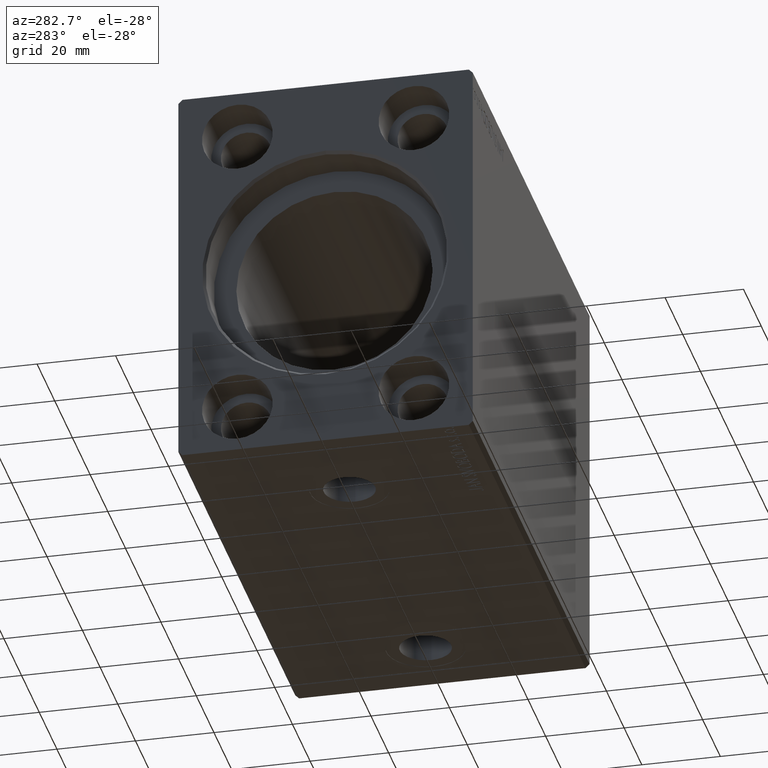
[diagram: clean part render]
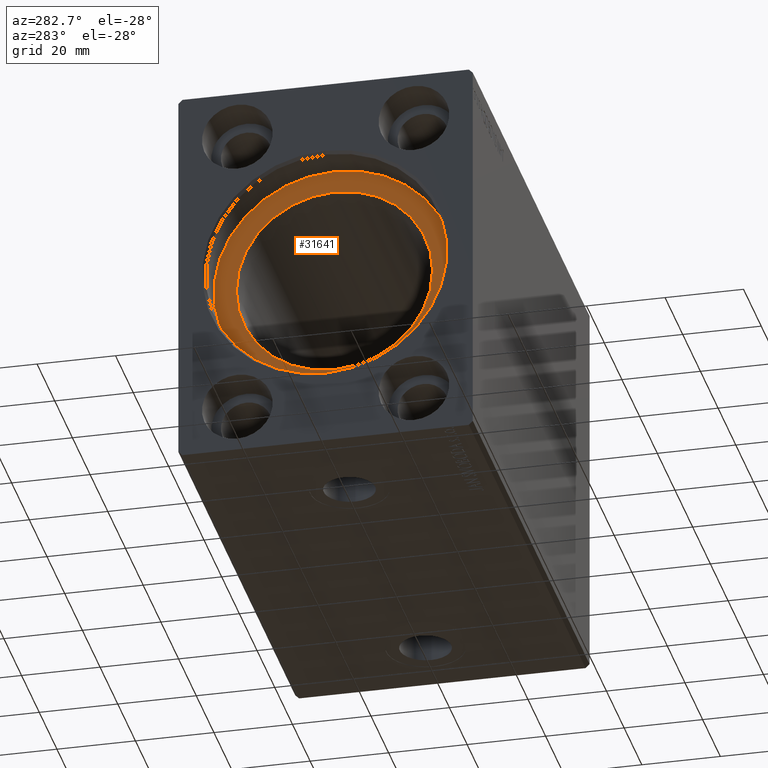
[diagram: same view with one face highlighted and labeled with its STEP entity id]
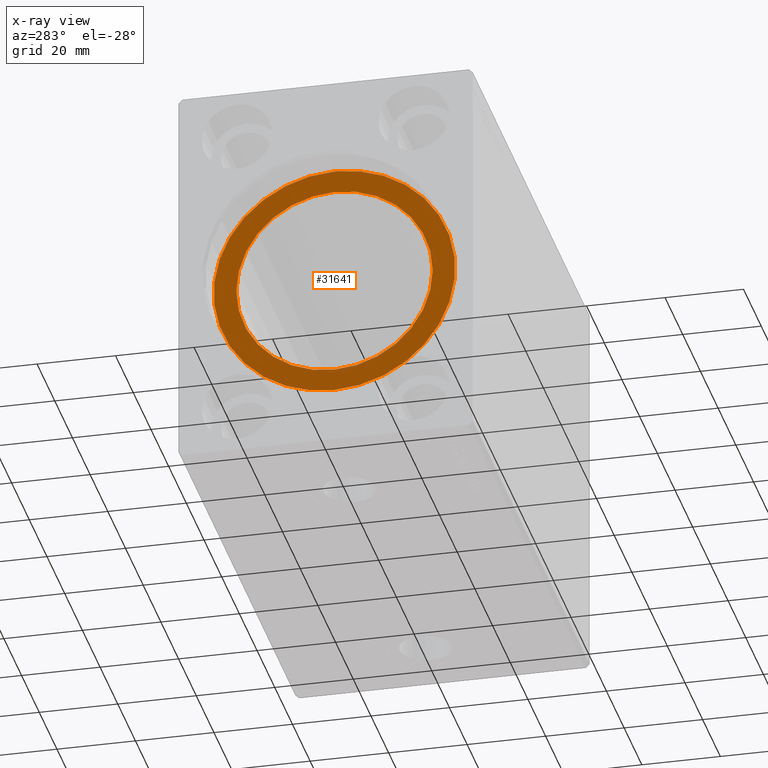
[diagram: x-ray of the same camera — body ghosted, the highlighted face saturated]
A machine part, auxiliary view. The second image highlights one B-rep face of the part: STEP entity #31641.
The next image is the same camera in x-ray: the body ghosted, the highlighted face saturated — about 0% of this face is hidden behind the body in this view.
In plain terms, the highlighted planar face has unit normal (-1, 0, 0).
Its self-contained STEP definition (entity closure, byte-faithful):
#497 = CARTESIAN_POINT ( 'NONE',  ( 10.00000000000000000, 3.765788907378111328E-15, -30.75000000000000355 ) ) ;
#918 = EDGE_CURVE ( 'NONE', #41727, #1910, #5711, .T. ) ;
#1730 = DIRECTION ( 'NONE',  ( 0.000000000000000000, 0.000000000000000000, 1.000000000000000000 ) ) ;
#1910 = VERTEX_POINT ( 'NONE', #31543 ) ;
#2135 = CARTESIAN_POINT ( 'NONE',  ( 10.00000000000000000, 0.000000000000000000, 0.000000000000000000 ) ) ;
#2378 = AXIS2_PLACEMENT_3D ( 'NONE', #18470, #14375, #1730 ) ;
#2492 = ORIENTED_EDGE ( 'NONE', *, *, #26546, .T. ) ;
#3183 = FACE_OUTER_BOUND ( 'NONE', #28383, .T. ) ;
#5711 = CIRCLE ( 'NONE', #2378, 25.00000000000000000 ) ;
#10022 = VERTEX_POINT ( 'NONE', #12178 ) ;
#12178 = CARTESIAN_POINT ( 'NONE',  ( 10.00000000000000000, 0.000000000000000000, 30.75000000000000355 ) ) ;
#12589 = CARTESIAN_POINT ( 'NONE',  ( 10.00000000000000000, 0.000000000000000000, 0.000000000000000000 ) ) ;
#13004 = ORIENTED_EDGE ( 'NONE', *, *, #918, .F. ) ;
#13037 = AXIS2_PLACEMENT_3D ( 'NONE', #12589, #39422, #28929 ) ;
#13458 = CARTESIAN_POINT ( 'NONE',  ( 10.00000000000000000, 0.000000000000000000, 0.000000000000000000 ) ) ;
#14220 = EDGE_CURVE ( 'NONE', #1910, #41727, #32042, .T. ) ;
#14375 = DIRECTION ( 'NONE',  ( -1.000000000000000000, 0.000000000000000000, 0.000000000000000000 ) ) ;
#14455 = CARTESIAN_POINT ( 'NONE',  ( 9.999999999999994671, 0.000000000000000000, 25.00000000000000000 ) ) ;
#15642 = DIRECTION ( 'NONE',  ( -1.000000000000000000, 0.000000000000000000, 0.000000000000000000 ) ) ;
#16266 = PLANE ( 'NONE',  #24736 ) ;
#18470 = CARTESIAN_POINT ( 'NONE',  ( 9.999999999999994671, 0.000000000000000000, 0.000000000000000000 ) ) ;
#19433 = ORIENTED_EDGE ( 'NONE', *, *, #36493, .T. ) ;
#21392 = EDGE_LOOP ( 'NONE', ( #13004, #33079 ) ) ;
#23751 = CARTESIAN_POINT ( 'NONE',  ( 9.999999999999994671, 0.000000000000000000, 0.000000000000000000 ) ) ;
#24736 = AXIS2_PLACEMENT_3D ( 'NONE', #13458, #39671, #42484 ) ;
#24837 = AXIS2_PLACEMENT_3D ( 'NONE', #2135, #15642, #34772 ) ;
#25871 = AXIS2_PLACEMENT_3D ( 'NONE', #23751, #30626, #36855 ) ;
#26546 = EDGE_CURVE ( 'NONE', #27714, #10022, #37736, .T. ) ;
#27714 = VERTEX_POINT ( 'NONE', #497 ) ;
#28383 = EDGE_LOOP ( 'NONE', ( #19433, #2492 ) ) ;
#28929 = DIRECTION ( 'NONE',  ( 0.000000000000000000, 0.000000000000000000, 1.000000000000000000 ) ) ;
#29179 = FACE_BOUND ( 'NONE', #21392, .T. ) ;
#30626 = DIRECTION ( 'NONE',  ( -1.000000000000000000, 0.000000000000000000, 0.000000000000000000 ) ) ;
#31543 = CARTESIAN_POINT ( 'NONE',  ( 9.999999999999994671, 3.061616997868383043E-15, -25.00000000000000000 ) ) ;
#31641 = ADVANCED_FACE ( 'NONE', ( #29179, #3183 ), #16266, .T. ) ;
#32042 = CIRCLE ( 'NONE', #25871, 25.00000000000000000 ) ;
#33079 = ORIENTED_EDGE ( 'NONE', *, *, #14220, .F. ) ;
#34772 = DIRECTION ( 'NONE',  ( 0.000000000000000000, 0.000000000000000000, 1.000000000000000000 ) ) ;
#36493 = EDGE_CURVE ( 'NONE', #10022, #27714, #41976, .T. ) ;
#36855 = DIRECTION ( 'NONE',  ( 0.000000000000000000, 0.000000000000000000, 1.000000000000000000 ) ) ;
#37736 = CIRCLE ( 'NONE', #13037, 30.75000000000000355 ) ;
#39422 = DIRECTION ( 'NONE',  ( -1.000000000000000000, 0.000000000000000000, 0.000000000000000000 ) ) ;
#39671 = DIRECTION ( 'NONE',  ( -1.000000000000000000, 0.000000000000000000, 0.000000000000000000 ) ) ;
#41727 = VERTEX_POINT ( 'NONE', #14455 ) ;
#41976 = CIRCLE ( 'NONE', #24837, 30.75000000000000355 ) ;
#42484 = DIRECTION ( 'NONE',  ( 0.000000000000000000, 0.000000000000000000, 1.000000000000000000 ) ) ;